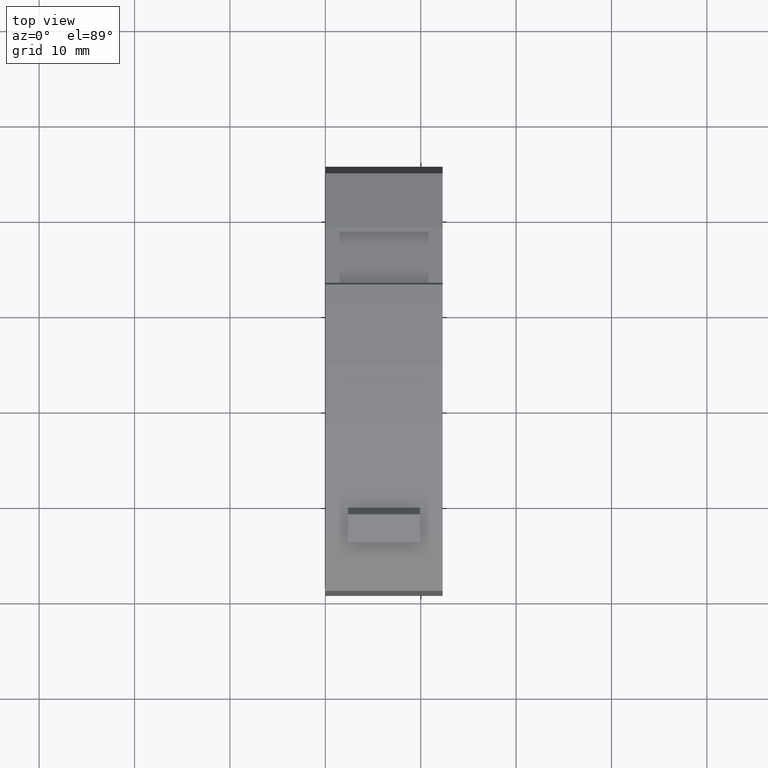
[diagram: clean part render]
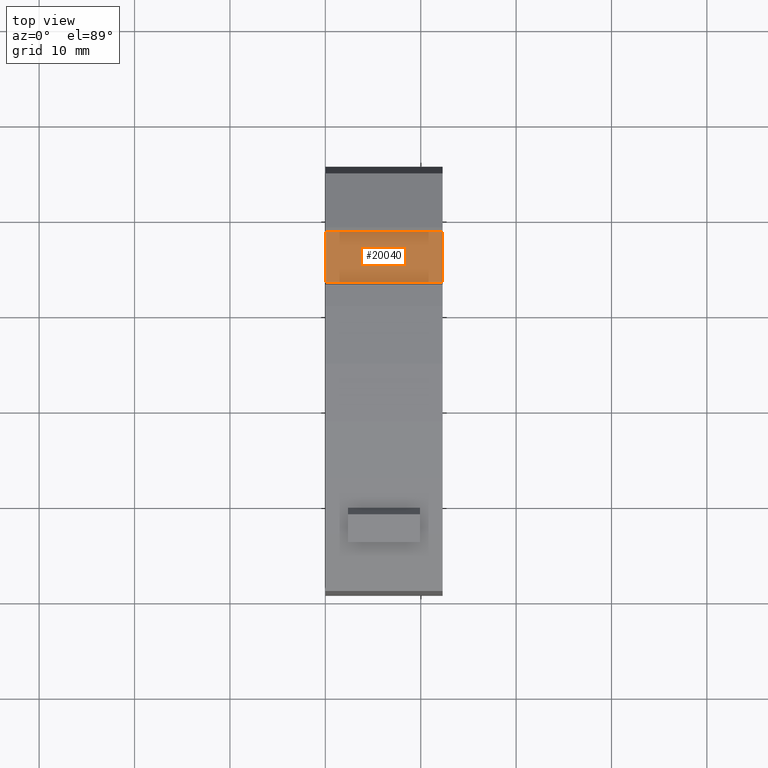
[diagram: same view with one face highlighted and labeled with its STEP entity id]
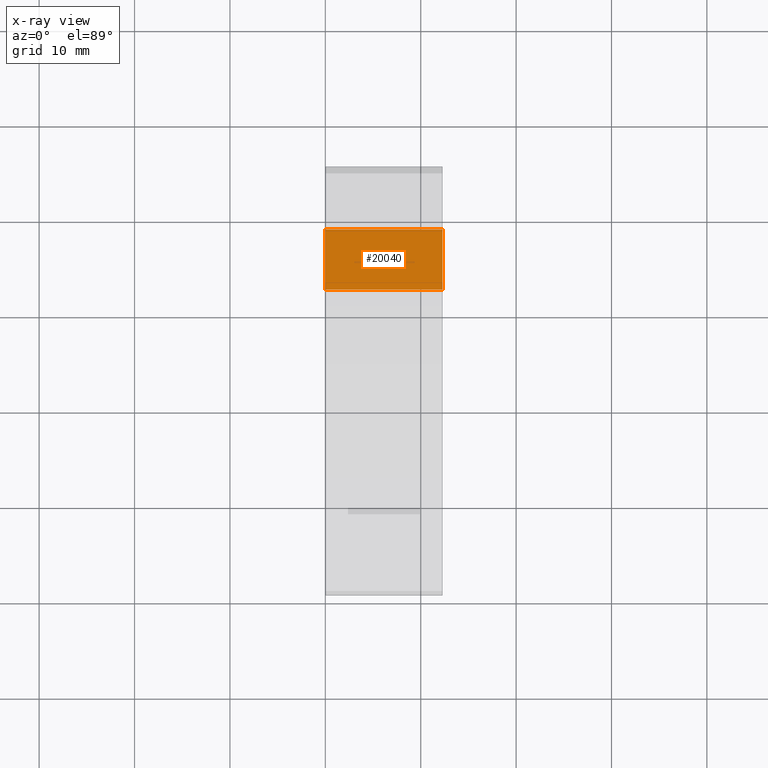
[diagram: x-ray of the same camera — body ghosted, the highlighted face saturated]
A machine part, top view. The second image highlights one B-rep face of the part: STEP entity #20040.
The next image is the same camera in x-ray: the body ghosted, the highlighted face saturated — about 0% of this face is hidden behind the body in this view.
In plain terms, the highlighted planar face has unit normal (0, 0.2079, 0.9781).
Its self-contained STEP definition (entity closure, byte-faithful):
#1950=CARTESIAN_POINT('',(-13.9414428391099,38.0354660563281,
53.6700000001206));
#1960=VERTEX_POINT('',#1950);
#1990=CARTESIAN_POINT('',(0.182167226176034,41.037532050174,
53.6700000001206));
#2000=DIRECTION('',(0.978147600733797,0.207911690817799,0.));
#2010=VECTOR('',#2000,1.);
#2020=LINE('',#1990,#2010);
#2030=CARTESIAN_POINT('',(-7.63239081437997,39.3764964621022,
53.6700000001206));
#2040=VERTEX_POINT('',#2030);
#2050=EDGE_CURVE('',#1960,#2040,#2020,.T.);
#5050=CARTESIAN_POINT('',(-7.63239081437997,39.3764964621022,
41.3700000001206));
#5060=VERTEX_POINT('',#5050);
#5090=CARTESIAN_POINT('',(0.,40.998811210929,41.3700000001206));
#5100=DIRECTION('',(0.978147600733797,0.207911690817799,0.));
#5110=VECTOR('',#5100,1.);
#5120=LINE('',#5090,#5110);
#5130=CARTESIAN_POINT('',(-13.9414428391099,38.0354660563281,
41.3700000001206));
#5140=VERTEX_POINT('',#5130);
#5150=EDGE_CURVE('',#5140,#5060,#5120,.T.);
#18110=CARTESIAN_POINT('',(-7.63239081437997,39.3764964621022,
41.4450000001206));
#18120=DIRECTION('',(0.,0.,1.));
#18130=VECTOR('',#18120,1.);
#18140=LINE('',#18110,#18130);
#18150=EDGE_CURVE('',#5060,#2040,#18140,.T.);
#19370=CARTESIAN_POINT('',(-13.9414428391099,38.0354660563281,0.));
#19380=DIRECTION('',(0.,0.,-1.));
#19390=VECTOR('',#19380,1.);
#19400=LINE('',#19370,#19390);
#19410=EDGE_CURVE('',#1960,#5140,#19400,.T.);
#19930=CARTESIAN_POINT('',(-7.63239081437997,39.3764964621023,
53.6700000001206));
#19940=DIRECTION('',(-0.207911690817799,0.978147600733797,0.));
#19950=DIRECTION('',(0.978147600733797,0.207911690817799,0.));
#19960=AXIS2_PLACEMENT_3D('',#19930,#19940,#19950);
#19970=PLANE('',#19960);
#19980=ORIENTED_EDGE('',*,*,#19410,.F.);
#19990=ORIENTED_EDGE('',*,*,#5150,.F.);
#20000=ORIENTED_EDGE('',*,*,#18150,.F.);
#20010=ORIENTED_EDGE('',*,*,#2050,.T.);
#20020=EDGE_LOOP('',(#20010,#20000,#19990,#19980));
#20030=FACE_OUTER_BOUND('',#20020,.T.);
#20040=ADVANCED_FACE('',(#20030),#19970,.T.);